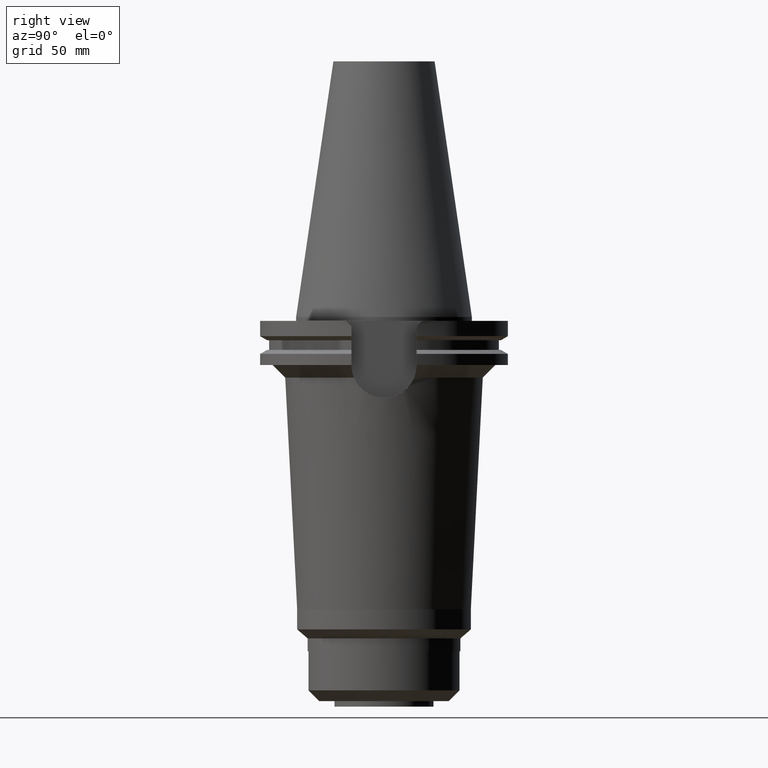
[diagram: clean part render]
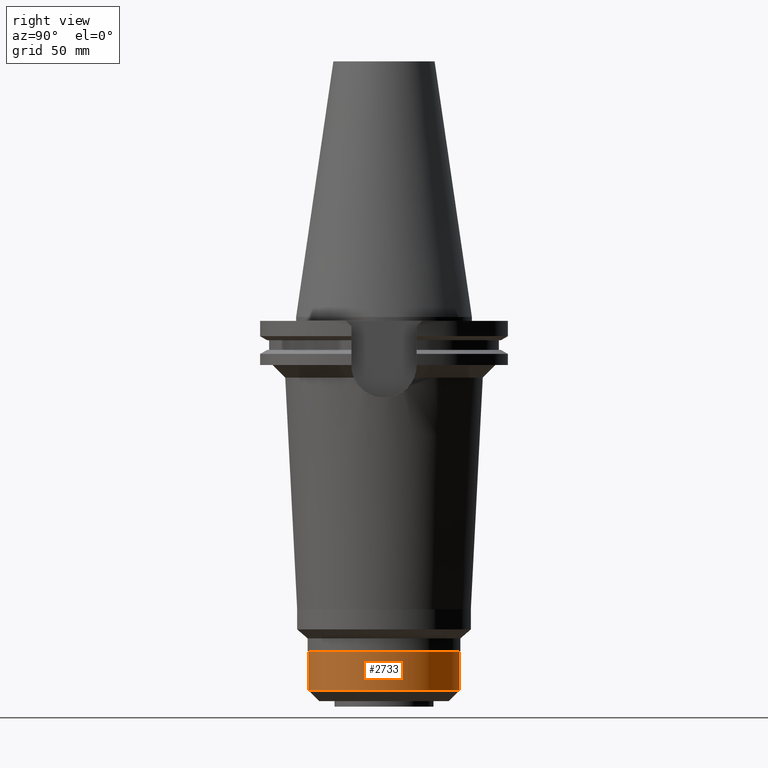
[diagram: same view with one face highlighted and labeled with its STEP entity id]
A machine part, right view. The second image highlights one B-rep face of the part: STEP entity #2733.
In plain terms, the highlighted cylindrical surface (partial cylindrical patch) has radius 30 mm, axis along (0, 0, -1).
Its self-contained STEP definition (entity closure, byte-faithful):
#1232=CARTESIAN_POINT('',(0.E0,1.401240867584E-14,-1.328E2));
#1233=DIRECTION('',(0.E0,0.E0,-1.E0));
#1234=DIRECTION('',(0.E0,1.E0,0.E0));
#1235=AXIS2_PLACEMENT_3D('',#1232,#1233,#1234);
#1240=DIRECTION('',(0.E0,0.E0,-1.E0));
#1241=VECTOR('',#1240,1.55E1);
#1242=CARTESIAN_POINT('',(0.E0,-3.E1,-1.328E2));
#1243=LINE('',#1242,#1241);
#1247=DIRECTION('',(0.E0,0.E0,-1.E0));
#1248=VECTOR('',#1247,1.55E1);
#1249=CARTESIAN_POINT('',(0.E0,3.E1,-1.328E2));
#1250=LINE('',#1249,#1248);
#1261=CARTESIAN_POINT('',(0.E0,-1.842481109317E-14,-1.483E2));
#1262=DIRECTION('',(0.E0,0.E0,1.E0));
#1263=DIRECTION('',(0.E0,-1.E0,0.E0));
#1264=AXIS2_PLACEMENT_3D('',#1261,#1262,#1263);
#1650=CARTESIAN_POINT('',(0.E0,3.E1,-1.483E2));
#1651=VERTEX_POINT('',#1650);
#1652=CARTESIAN_POINT('',(0.E0,-3.E1,-1.483E2));
#1653=VERTEX_POINT('',#1652);
#1654=CARTESIAN_POINT('',(0.E0,3.E1,-1.328E2));
#1655=VERTEX_POINT('',#1654);
#1656=CARTESIAN_POINT('',(0.E0,-3.E1,-1.328E2));
#1657=VERTEX_POINT('',#1656);
#2721=CARTESIAN_POINT('',(0.E0,1.401240867584E-14,1.1442E2));
#2722=DIRECTION('',(0.E0,0.E0,-1.E0));
#2723=DIRECTION('',(0.E0,-1.E0,0.E0));
#2724=AXIS2_PLACEMENT_3D('',#2721,#2722,#2723);
#2725=CYLINDRICAL_SURFACE('',#2724,3.E1);
#2726=ORIENTED_EDGE('',*,*,#2711,.T.);
#2728=ORIENTED_EDGE('',*,*,#2727,.F.);
#2729=ORIENTED_EDGE('',*,*,#2714,.F.);
#2730=ORIENTED_EDGE('',*,*,#2701,.F.);
#2731=EDGE_LOOP('',(#2726,#2728,#2729,#2730));
#2732=FACE_OUTER_BOUND('',#2731,.F.);
#1236=CIRCLE('',#1235,3.E1);
#1265=CIRCLE('',#1264,3.E1);
#2701=EDGE_CURVE('',#1655,#1657,#1236,.T.);
#2711=EDGE_CURVE('',#1655,#1651,#1250,.T.);
#2714=EDGE_CURVE('',#1657,#1653,#1243,.T.);
#2727=EDGE_CURVE('',#1653,#1651,#1265,.T.);
#2733=ADVANCED_FACE('',(#2732),#2725,.T.);